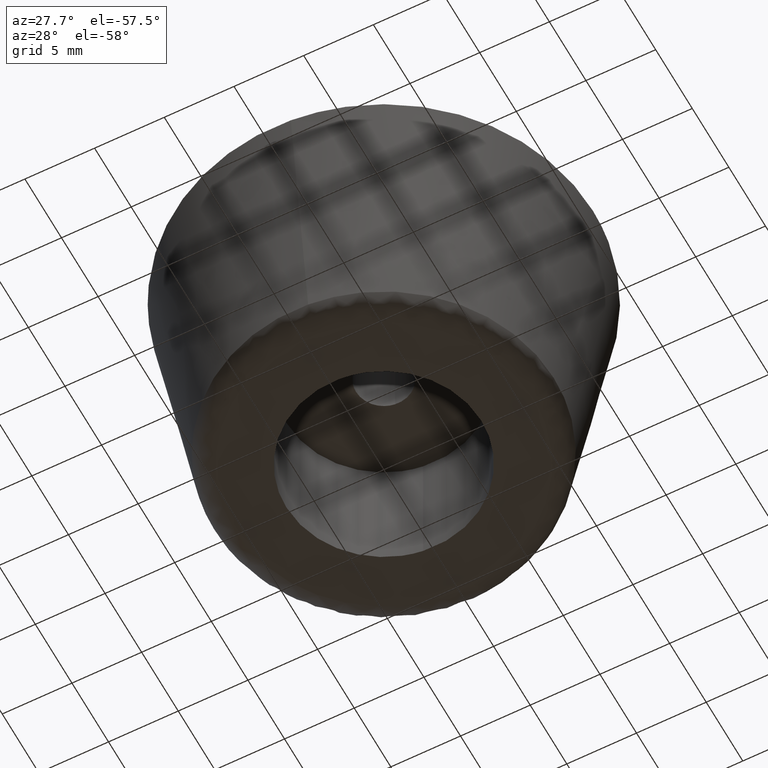
[diagram: clean part render]
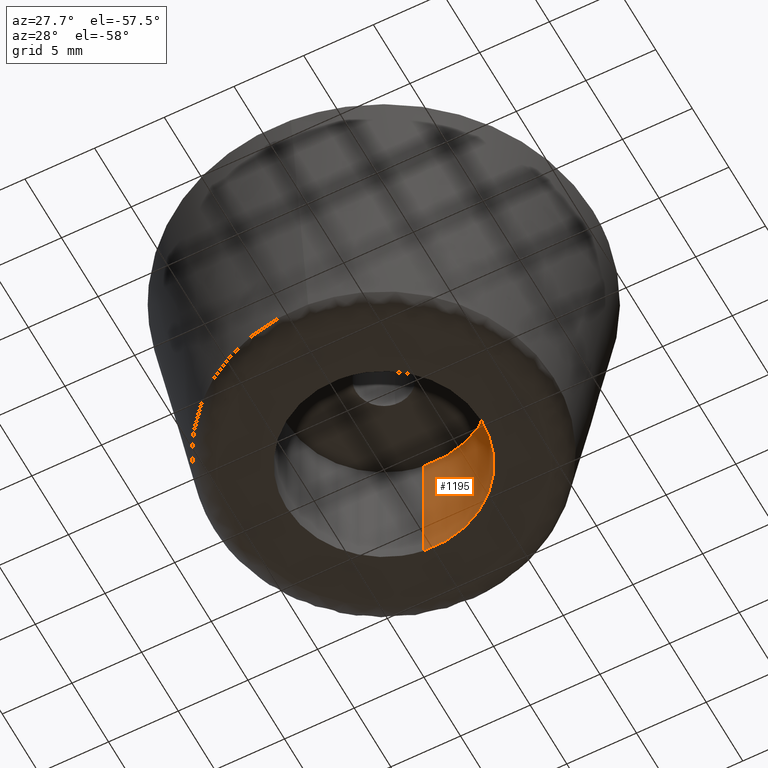
[diagram: same view with one face highlighted and labeled with its STEP entity id]
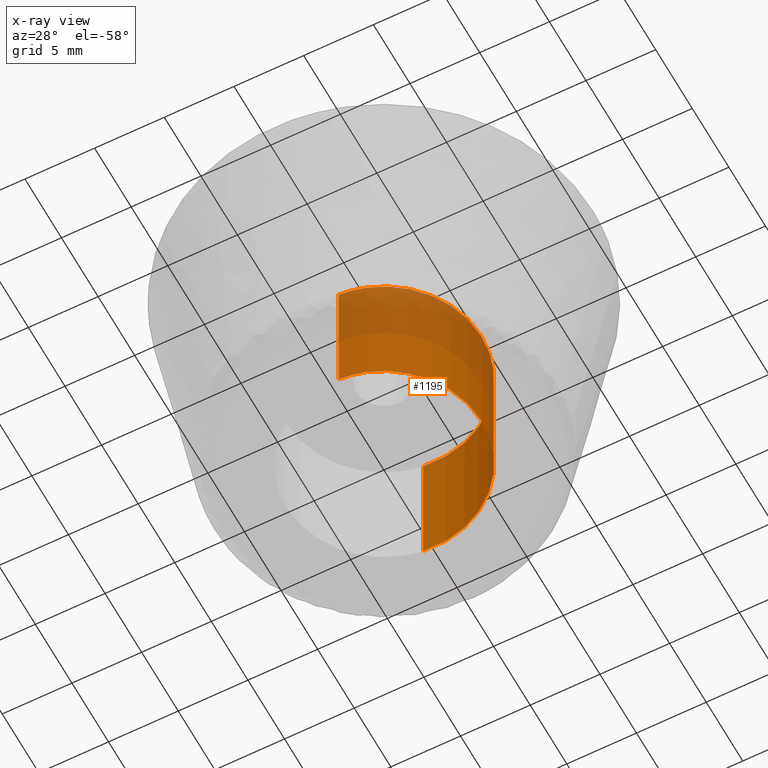
[diagram: x-ray of the same camera — body ghosted, the highlighted face saturated]
A machine part, auxiliary view. The second image highlights one B-rep face of the part: STEP entity #1195.
The next image is the same camera in x-ray: the body ghosted, the highlighted face saturated — about 38% of this face is hidden behind the body in this view.
In plain terms, the highlighted face is a freeform B-spline surface patch.
Its self-contained STEP definition (entity closure, byte-faithful):
#1089=CARTESIAN_POINT('',(-0.929385939956234,6.938806183570390,10.250000000000002));
#1090=CARTESIAN_POINT('',(-0.877667385454096,6.944953717744174,10.250000000000004));
#1091=CARTESIAN_POINT('',(-0.627303100465844,6.974713308140240,10.250000000000005));
#1092=CARTESIAN_POINT('',(-0.427339776743999,6.986943588953067,10.250000000000000));
#1093=CARTESIAN_POINT('',(6.559603812209068,7.414283365697066,10.250000000000002));
#1094=CARTESIAN_POINT('',(6.986943588953067,0.427339776743999,10.250000000000000));
#1095=CARTESIAN_POINT('',(7.414283365697066,-6.559603812209068,10.250000000000002));
#1096=CARTESIAN_POINT('',(0.377091409202243,-6.990016910770204,10.250000000000004));
#1097=CARTESIAN_POINT('',(0.327141524372199,-6.993071976602629,10.250000000000005));
#1098=CARTESIAN_POINT('',(-0.929385939956234,6.938806183570390,-0.256250000000000));
#1099=CARTESIAN_POINT('',(-0.877667385454096,6.944953717744174,-0.256250000000000));
#1100=CARTESIAN_POINT('',(-0.627303100465844,6.974713308140240,-0.256250000000000));
#1101=CARTESIAN_POINT('',(-0.427339776743999,6.986943588953067,-0.256250000000000));
#1102=CARTESIAN_POINT('',(6.559603812209068,7.414283365697066,-0.256250000000000));
#1103=CARTESIAN_POINT('',(6.986943588953067,0.427339776743999,-0.256250000000000));
#1104=CARTESIAN_POINT('',(7.414283365697066,-6.559603812209068,-0.256250000000000));
#1105=CARTESIAN_POINT('',(0.377091409202243,-6.990016910770204,-0.256250000000000));
#1106=CARTESIAN_POINT('',(0.327141524372199,-6.993071976602629,-0.256250000000000));
#1114=(BOUNDED_SURFACE()B_SPLINE_SURFACE(2,1,((#1089,#1098),(#1090,#1099),(#1091,#1100),(#1092,#1101),(#1093,#1102),(#1094,#1103),(#1095,#1104),(#1096,#1105),(#1097,#1106)),.UNSPECIFIED.,.F.,.F.,.U.)B_SPLINE_SURFACE_WITH_KNOTS((3,1,2,2,1,3),(2,2),(0.0,0.118287802812392,0.582206992670259,12.180186739116920,23.778166485563570,23.896478193520359),(0.0,10.506250000000000),.UNSPECIFIED.)GEOMETRIC_REPRESENTATION_ITEM()RATIONAL_B_SPLINE_SURFACE(((0.972009319445107,0.972009319445107),(0.974757560120117,0.974757560120117),(0.988284271247462,0.988284271247462),(1.0,1.0),(0.707106781186548,0.707106781186548),(1.0,1.0),(0.707106781186548,0.707106781186548),(1.002987821821072,1.002987821821072),(1.005975643642143,1.005975643642143)))REPRESENTATION_ITEM('')SURFACE());
#1115=CARTESIAN_POINT('',(-0.826229466061572,6.951067894166087,-2.011735E-014));
#1116=VERTEX_POINT('',#1115);
#1117=CARTESIAN_POINT('',(7.0,0.0,0.0));
#1118=VERTEX_POINT('',#1117);
#1119=CARTESIAN_POINT('',(-0.826229466061572,6.951067894166087,-2.011735E-014));
#1120=CARTESIAN_POINT('',(-0.414563695504101,7.0,0.0));
#1121=CARTESIAN_POINT('',(0.0,7.0,0.0));
#1122=CARTESIAN_POINT('',(6.999999999999999,6.999999999999999,0.0));
#1123=CARTESIAN_POINT('',(7.0,0.0,0.0));
#1131=(BOUNDED_CURVE()B_SPLINE_CURVE(2,(#1119,#1120,#1121,#1122,#1123),.UNSPECIFIED.,.F.,.U.)B_SPLINE_CURVE_WITH_KNOTS((3,2,3),(0.229562720940656,0.250000000000000,0.500000000000000),.UNSPECIFIED.)CURVE()GEOMETRIC_REPRESENTATION_ITEM()RATIONAL_B_SPLINE_CURVE((0.956027239151607,0.976056238210079,1.0,0.707106781186547,1.0))REPRESENTATION_ITEM(''));
#1132=EDGE_CURVE('',#1116,#1118,#1131,.T.);
#1133=ORIENTED_EDGE('',*,*,#1132,.T.);
#1134=CARTESIAN_POINT('',(0.427329286051951,-6.986944230575470,-2.534084E-014));
#1135=VERTEX_POINT('',#1134);
#1136=CARTESIAN_POINT('',(7.0,0.0,0.0));
#1137=CARTESIAN_POINT('',(7.000000000000001,-6.584952373920931,0.0));
#1138=CARTESIAN_POINT('',(0.427329286051951,-6.986944230575470,-2.534084E-014));
#1146=(BOUNDED_CURVE()B_SPLINE_CURVE(2,(#1136,#1137,#1138),.UNSPECIFIED.,.F.,.U.)B_SPLINE_CURVE_WITH_KNOTS((3,3),(0.500000000000000,0.739333221315991),.UNSPECIFIED.)CURVE()GEOMETRIC_REPRESENTATION_ITEM()RATIONAL_B_SPLINE_CURVE((1.0,0.719603689759067,0.976072596918779))REPRESENTATION_ITEM(''));
#1147=EDGE_CURVE('',#1118,#1135,#1146,.T.);
#1148=ORIENTED_EDGE('',*,*,#1147,.T.);
#1149=CARTESIAN_POINT('',(0.427329415533188,-6.986944222656446,10.0));
#1150=VERTEX_POINT('',#1149);
#1151=CARTESIAN_POINT('',(0.427329415533188,-6.986944222656446,10.0));
#1152=CARTESIAN_POINT('',(0.427329286051951,-6.986944230575470,-2.534084E-014));
#1153=QUASI_UNIFORM_CURVE('',1,(#1151,#1152),.UNSPECIFIED.,.F.,.U.);
#1154=EDGE_CURVE('',#1150,#1135,#1153,.T.);
#1155=ORIENTED_EDGE('',*,*,#1154,.F.);
#1156=CARTESIAN_POINT('',(7.0,0.0,10.0));
#1157=VERTEX_POINT('',#1156);
#1158=CARTESIAN_POINT('',(7.0,0.0,10.0));
#1159=CARTESIAN_POINT('',(6.999999999999999,-6.584952251661346,10.0));
#1160=CARTESIAN_POINT('',(0.427329415533188,-6.986944222656447,10.000000000000002));
#1168=(BOUNDED_CURVE()B_SPLINE_CURVE(2,(#1158,#1159,#1160),.UNSPECIFIED.,.F.,.U.)B_SPLINE_CURVE_WITH_KNOTS((3,3),(0.500000000000000,0.739333218118373),.UNSPECIFIED.)CURVE()GEOMETRIC_REPRESENTATION_ITEM()RATIONAL_B_SPLINE_CURVE((1.0,0.719603693505311,0.976072590065658))REPRESENTATION_ITEM(''));
#1169=EDGE_CURVE('',#1157,#1150,#1168,.T.);
#1170=ORIENTED_EDGE('',*,*,#1169,.F.);
#1171=CARTESIAN_POINT('',(-0.826229591652768,6.951067879238041,10.0));
#1172=VERTEX_POINT('',#1171);
#1173=CARTESIAN_POINT('',(-0.826229591652768,6.951067879238041,10.000000000000002));
#1174=CARTESIAN_POINT('',(-0.414563758963539,7.0,10.0));
#1175=CARTESIAN_POINT('',(0.0,7.0,10.0));
#1176=CARTESIAN_POINT('',(6.999999999999999,6.999999999999999,10.0));
#1177=CARTESIAN_POINT('',(7.0,0.0,10.0));
#1185=(BOUNDED_CURVE()B_SPLINE_CURVE(2,(#1173,#1174,#1175,#1176,#1177),.UNSPECIFIED.,.F.,.U.)B_SPLINE_CURVE_WITH_KNOTS((3,2,3),(0.229562717887121,0.250000000000000,0.500000000000000),.UNSPECIFIED.)CURVE()GEOMETRIC_REPRESENTATION_ITEM()RATIONAL_B_SPLINE_CURVE((0.956027233166540,0.976056234632641,1.0,0.707106781186547,1.0))REPRESENTATION_ITEM(''));
#1186=EDGE_CURVE('',#1172,#1157,#1185,.T.);
#1187=ORIENTED_EDGE('',*,*,#1186,.F.);
#1188=CARTESIAN_POINT('',(-0.826229591652768,6.951067879238041,10.0));
#1189=CARTESIAN_POINT('',(-0.826229466061572,6.951067894166087,-2.011735E-014));
#1190=QUASI_UNIFORM_CURVE('',1,(#1188,#1189),.UNSPECIFIED.,.F.,.U.);
#1191=EDGE_CURVE('',#1172,#1116,#1190,.T.);
#1192=ORIENTED_EDGE('',*,*,#1191,.T.);
#1193=EDGE_LOOP('',(#1133,#1148,#1155,#1170,#1187,#1192));
#1194=FACE_OUTER_BOUND('',#1193,.T.);
#1195=ADVANCED_FACE('',(#1194),#1114,.F.);